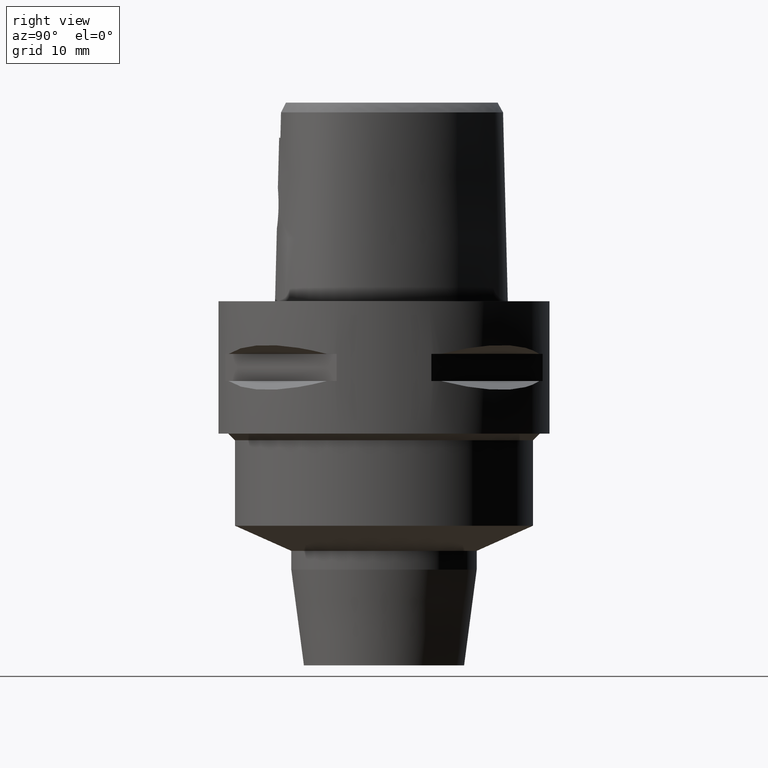
[diagram: clean part render]
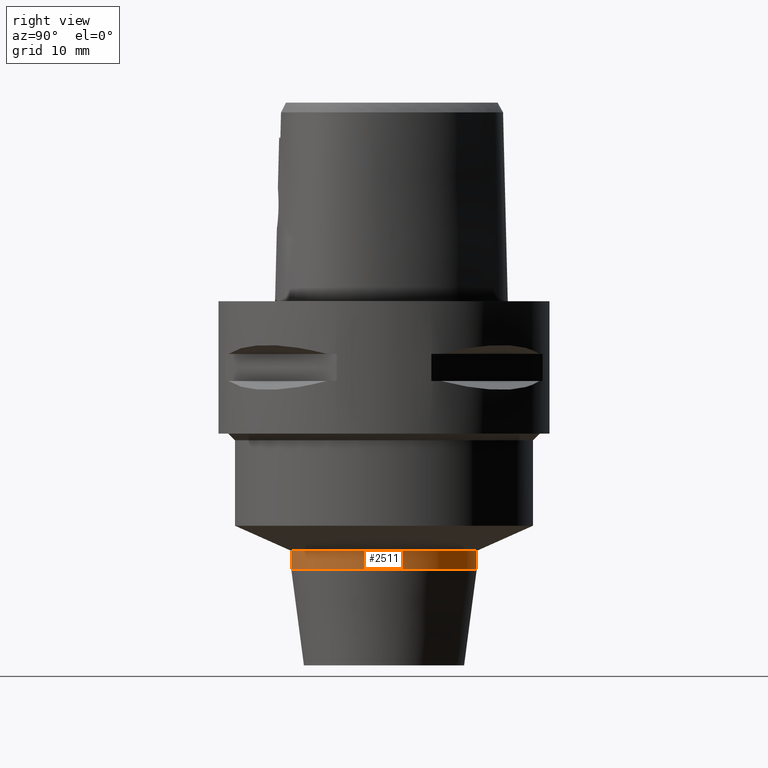
[diagram: same view with one face highlighted and labeled with its STEP entity id]
A machine part, right view. The second image highlights one B-rep face of the part: STEP entity #2511.
In plain terms, the highlighted cylindrical surface (partial cylindrical patch) has radius 14 mm, axis along (0, 0, -1).
Its self-contained STEP definition (entity closure, byte-faithful):
#614=CARTESIAN_POINT('',(0.E0,0.E0,-3.77E1));
#615=DIRECTION('',(0.E0,0.E0,-1.E0));
#616=DIRECTION('',(0.E0,1.E0,0.E0));
#617=AXIS2_PLACEMENT_3D('',#614,#615,#616);
#630=DIRECTION('',(0.E0,3.580652572629E-13,-1.E0));
#631=VECTOR('',#630,2.837684169372E0);
#632=CARTESIAN_POINT('',(0.E0,1.4E1,-3.77E1));
#633=LINE('',#632,#631);
#637=DIRECTION('',(0.E0,-3.580652572629E-13,-1.E0));
#638=VECTOR('',#637,2.837684169372E0);
#639=CARTESIAN_POINT('',(0.E0,-1.4E1,-3.77E1));
#640=LINE('',#639,#638);
#666=CARTESIAN_POINT('',(0.E0,0.E0,-4.053768416937E1));
#667=DIRECTION('',(0.E0,0.E0,1.E0));
#668=DIRECTION('',(0.E0,-1.E0,0.E0));
#669=AXIS2_PLACEMENT_3D('',#666,#667,#668);
#1591=CARTESIAN_POINT('',(0.E0,1.4E1,-3.77E1));
#1592=VERTEX_POINT('',#1591);
#1593=CARTESIAN_POINT('',(0.E0,-1.4E1,-3.77E1));
#1594=VERTEX_POINT('',#1593);
#1595=CARTESIAN_POINT('',(0.E0,1.4E1,-4.053768416937E1));
#1596=VERTEX_POINT('',#1595);
#1597=CARTESIAN_POINT('',(0.E0,-1.4E1,-4.053768416937E1));
#1598=VERTEX_POINT('',#1597);
#2497=CARTESIAN_POINT('',(0.E0,1.258324586124E-14,2.75E0));
#2498=DIRECTION('',(0.E0,0.E0,-1.E0));
#2499=DIRECTION('',(0.E0,-1.E0,0.E0));
#2500=AXIS2_PLACEMENT_3D('',#2497,#2498,#2499);
#2501=CYLINDRICAL_SURFACE('',#2500,1.4E1);
#2503=ORIENTED_EDGE('',*,*,#2502,.T.);
#2505=ORIENTED_EDGE('',*,*,#2504,.F.);
#2507=ORIENTED_EDGE('',*,*,#2506,.F.);
#2508=ORIENTED_EDGE('',*,*,#2490,.F.);
#2509=EDGE_LOOP('',(#2503,#2505,#2507,#2508));
#2510=FACE_OUTER_BOUND('',#2509,.F.);
#618=CIRCLE('',#617,1.4E1);
#670=CIRCLE('',#669,1.4E1);
#2490=EDGE_CURVE('',#1592,#1594,#618,.T.);
#2502=EDGE_CURVE('',#1592,#1596,#633,.T.);
#2504=EDGE_CURVE('',#1598,#1596,#670,.T.);
#2506=EDGE_CURVE('',#1594,#1598,#640,.T.);
#2511=ADVANCED_FACE('',(#2510),#2501,.T.);